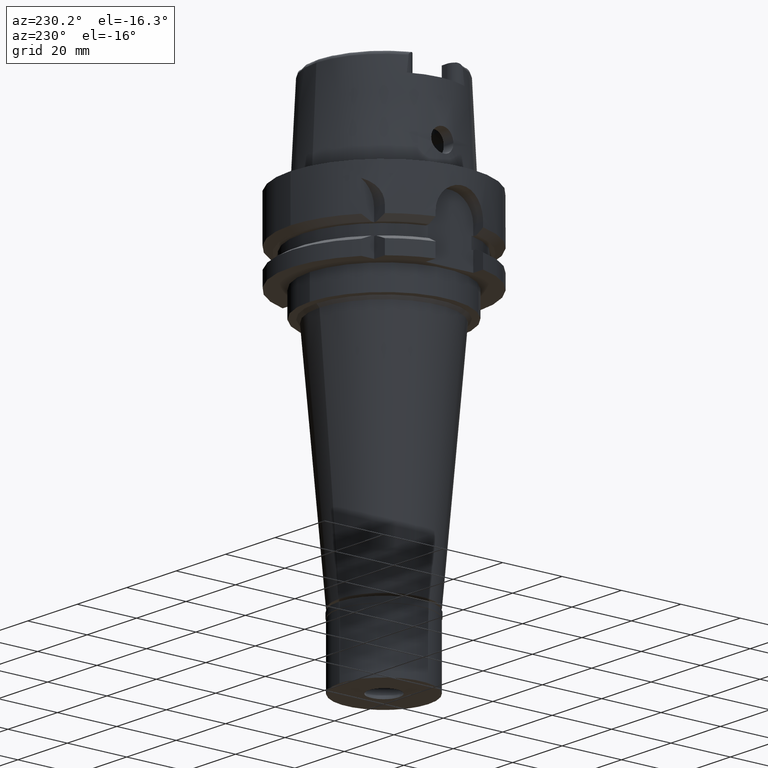
[diagram: clean part render]
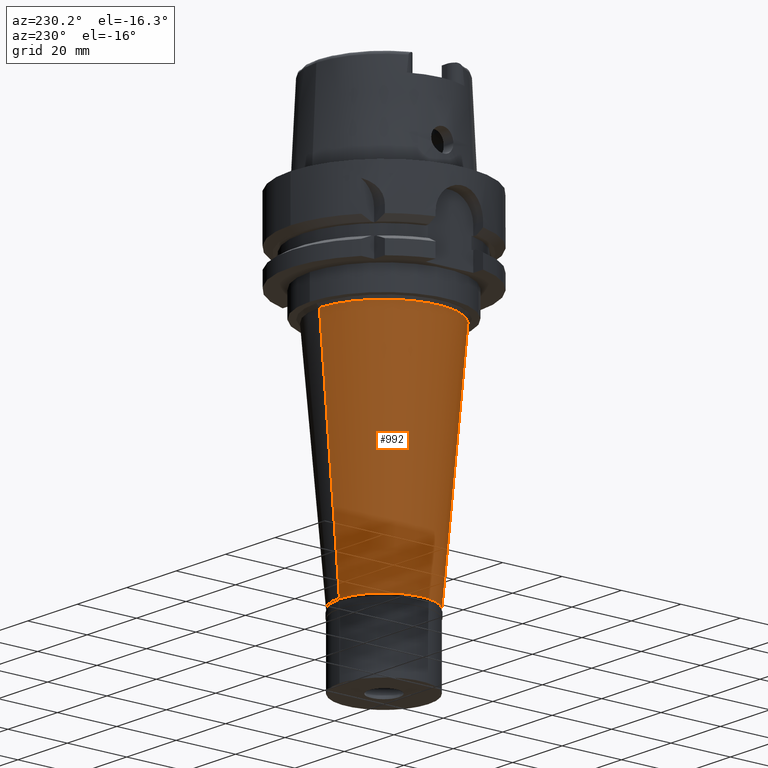
[diagram: same view with one face highlighted and labeled with its STEP entity id]
A machine part, auxiliary view. The second image highlights one B-rep face of the part: STEP entity #992.
In plain terms, the highlighted conical surface has half-angle 5 deg.
Its self-contained STEP definition (entity closure, byte-faithful):
#141 = CARTESIAN_POINT ( 'NONE',  ( 0.0000000000000000000, 0.0000000000000000000, -112.1999999999999886 ) ) ;
#270 = DIRECTION ( 'NONE',  ( 0.0000000000000000000, 1.000000000000000000, 0.0000000000000000000 ) ) ;
#580 = CARTESIAN_POINT ( 'NONE',  ( 0.0000000000000000000, 21.75412482419999805, -35.00000000000000000 ) ) ;
#798 = VERTEX_POINT ( 'NONE', #1349 ) ;
#992 = ADVANCED_FACE ( 'NONE', ( #1540 ), #1176, .T. ) ;
#1176 = CONICAL_SURFACE ( 'NONE', #2247, 18.37706241209999902, 0.08726646259969973729 ) ;
#1302 = VERTEX_POINT ( 'NONE', #3268 ) ;
#1349 = CARTESIAN_POINT ( 'NONE',  ( 0.0000000000000000000, 15.00000000000000000, -112.1999999999999886 ) ) ;
#1389 = VECTOR ( 'NONE', #4363, 1000.000000000000000 ) ;
#1457 = CARTESIAN_POINT ( 'NONE',  ( 0.0000000000000000000, 0.0000000000000000000, -73.59999999999999432 ) ) ;
#1483 = CARTESIAN_POINT ( 'NONE',  ( 0.0000000000000000000, -21.75412482419999805, -35.00000000000000000 ) ) ;
#1520 = AXIS2_PLACEMENT_3D ( 'NONE', #3770, #3250, #4902 ) ;
#1540 = FACE_OUTER_BOUND ( 'NONE', #5086, .T. ) ;
#1762 = DIRECTION ( 'NONE',  ( 0.0000000000000000000, -0.08715574274765398866, -0.9961946980917458783 ) ) ;
#2026 = EDGE_CURVE ( 'NONE', #798, #1302, #3432, .T. ) ;
#2068 = ORIENTED_EDGE ( 'NONE', *, *, #2026, .T. ) ;
#2110 = VERTEX_POINT ( 'NONE', #4280 ) ;
#2247 = AXIS2_PLACEMENT_3D ( 'NONE', #1457, #3148, #270 ) ;
#2349 = VECTOR ( 'NONE', #1762, 1000.000000000000000 ) ;
#2604 = DIRECTION ( 'NONE',  ( 0.0000000000000000000, 0.0000000000000000000, 1.000000000000000000 ) ) ;
#2843 = EDGE_CURVE ( 'NONE', #2110, #4182, #3024, .T. ) ;
#2984 = ORIENTED_EDGE ( 'NONE', *, *, #2843, .T. ) ;
#3024 = CIRCLE ( 'NONE', #1520, 21.75412482419999805 ) ;
#3148 = DIRECTION ( 'NONE',  ( 0.0000000000000000000, 0.0000000000000000000, 1.000000000000000000 ) ) ;
#3250 = DIRECTION ( 'NONE',  ( 0.0000000000000000000, 0.0000000000000000000, -1.000000000000000000 ) ) ;
#3268 = CARTESIAN_POINT ( 'NONE',  ( 0.0000000000000000000, -15.00000000000000000, -112.1999999999999886 ) ) ;
#3410 = DIRECTION ( 'NONE',  ( 0.0000000000000000000, 1.000000000000000000, 0.0000000000000000000 ) ) ;
#3432 = CIRCLE ( 'NONE', #5366, 15.00000000000000000 ) ;
#3761 = ORIENTED_EDGE ( 'NONE', *, *, #5174, .F. ) ;
#3770 = CARTESIAN_POINT ( 'NONE',  ( 0.0000000000000000000, 0.0000000000000000000, -35.00000000000000000 ) ) ;
#3800 = CARTESIAN_POINT ( 'NONE',  ( 0.0000000000000000000, 21.75412482419999805, -35.00000000000000000 ) ) ;
#4051 = EDGE_CURVE ( 'NONE', #4182, #798, #4328, .T. ) ;
#4182 = VERTEX_POINT ( 'NONE', #580 ) ;
#4280 = CARTESIAN_POINT ( 'NONE',  ( 0.0000000000000000000, -21.75412482419999805, -35.00000000000000000 ) ) ;
#4328 = LINE ( 'NONE', #3800, #2349 ) ;
#4363 = DIRECTION ( 'NONE',  ( 0.0000000000000000000, 0.08715574274765398866, -0.9961946980917458783 ) ) ;
#4902 = DIRECTION ( 'NONE',  ( 0.0000000000000000000, -1.000000000000000000, 0.0000000000000000000 ) ) ;
#5086 = EDGE_LOOP ( 'NONE', ( #2068, #3761, #2984, #5243 ) ) ;
#5174 = EDGE_CURVE ( 'NONE', #2110, #1302, #5245, .T. ) ;
#5243 = ORIENTED_EDGE ( 'NONE', *, *, #4051, .T. ) ;
#5245 = LINE ( 'NONE', #1483, #1389 ) ;
#5366 = AXIS2_PLACEMENT_3D ( 'NONE', #141, #2604, #3410 ) ;